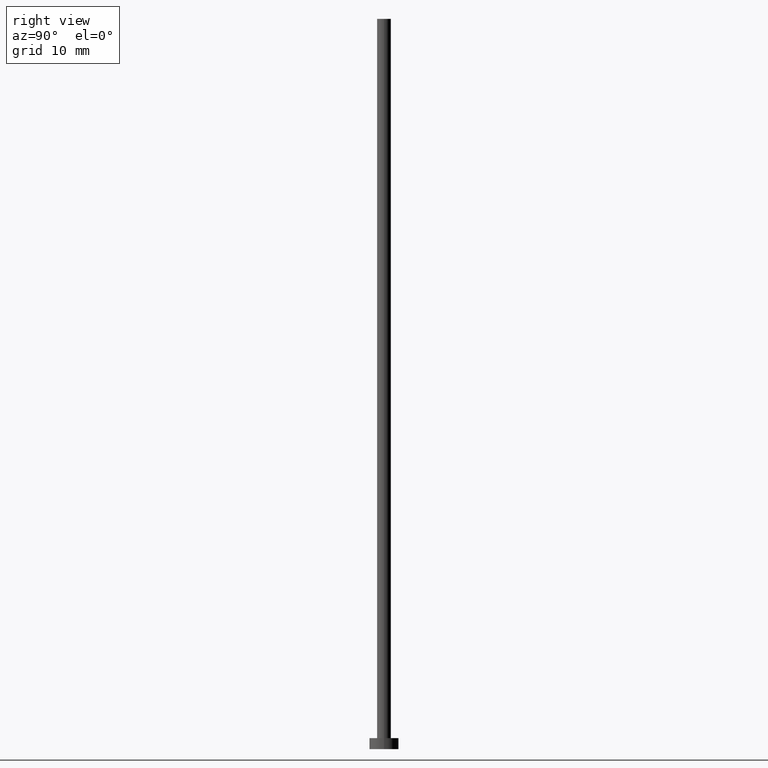
[diagram: clean part render]
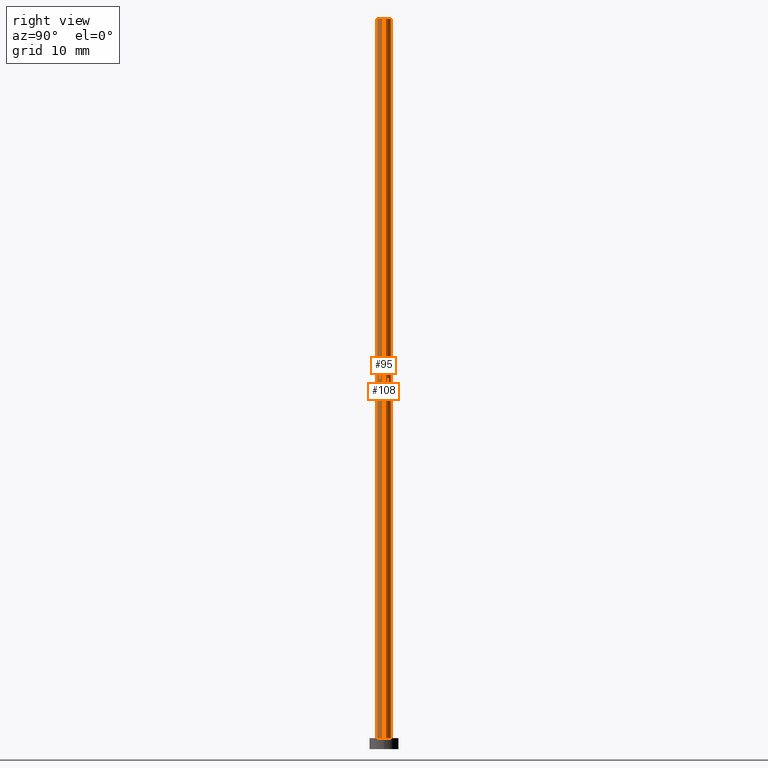
[diagram: same view with one multi-face feature highlighted, each face labeled with its STEP entity id]
A machine part, right view. The highlighted faces form ONE feature: a constant-radius fillet chain: 2 tangent blend faces with common blend radius 0.95 mm. The faces share edges in the B-rep.
Their STEP definitions:
[1] entity #108 (Cylinder):
#8 = CARTESIAN_POINT ( 'NONE',  ( 0.9499999999999999556, 1.163414459189985682E-16, 100.0000000000000000 ) ) ;
#14 = EDGE_CURVE ( 'NONE', #161, #103, #234, .T. ) ;
#18 = VERTEX_POINT ( 'NONE', #239 ) ;
#21 = EDGE_LOOP ( 'NONE', ( #232, #59, #127, #61 ) ) ;
#26 = CARTESIAN_POINT ( 'NONE',  ( 0.9499999999999999556, 1.163414459189985682E-16, 1.500000000000000000 ) ) ;
#28 = CARTESIAN_POINT ( 'NONE',  ( 0.000000000000000000, 0.000000000000000000, 100.0000000000000000 ) ) ;
#30 = VERTEX_POINT ( 'NONE', #152 ) ;
#46 = EDGE_CURVE ( 'NONE', #103, #30, #147, .T. ) ;
#48 = DIRECTION ( 'NONE',  ( -0.000000000000000000, -0.000000000000000000, -1.000000000000000000 ) ) ;
#50 = DIRECTION ( 'NONE',  ( -1.000000000000000000, 0.000000000000000000, 0.000000000000000000 ) ) ;
#51 = CARTESIAN_POINT ( 'NONE',  ( 0.000000000000000000, 0.000000000000000000, 100.0000000000000000 ) ) ;
#53 = VECTOR ( 'NONE', #218, 1000.000000000000000 ) ;
#59 = ORIENTED_EDGE ( 'NONE', *, *, #14, .T. ) ;
#61 = ORIENTED_EDGE ( 'NONE', *, *, #85, .F. ) ;
#64 = FACE_OUTER_BOUND ( 'NONE', #21, .T. ) ;
#68 = LINE ( 'NONE', #224, #53 ) ;
#71 = DIRECTION ( 'NONE',  ( 1.000000000000000000, 0.000000000000000000, 0.000000000000000000 ) ) ;
#81 = CYLINDRICAL_SURFACE ( 'NONE', #216, 0.9499999999999999556 ) ;
#85 = EDGE_CURVE ( 'NONE', #18, #30, #68, .T. ) ;
#103 = VERTEX_POINT ( 'NONE', #26 ) ;
#107 = DIRECTION ( 'NONE',  ( 0.000000000000000000, 0.000000000000000000, 1.000000000000000000 ) ) ;
#108 = ADVANCED_FACE ( 'NONE', ( #64 ), #81, .T. ) ;
#110 = AXIS2_PLACEMENT_3D ( 'NONE', #51, #158, #71 ) ;
#127 = ORIENTED_EDGE ( 'NONE', *, *, #46, .T. ) ;
#146 = CARTESIAN_POINT ( 'NONE',  ( 0.000000000000000000, 0.000000000000000000, 1.500000000000000000 ) ) ;
#147 = CIRCLE ( 'NONE', #198, 0.9499999999999999556 ) ;
#152 = CARTESIAN_POINT ( 'NONE',  ( -0.9499999999999999556, 0.000000000000000000, 1.500000000000000000 ) ) ;
#154 = VECTOR ( 'NONE', #236, 1000.000000000000000 ) ;
#157 = EDGE_CURVE ( 'NONE', #161, #18, #201, .T. ) ;
#158 = DIRECTION ( 'NONE',  ( 0.000000000000000000, 0.000000000000000000, 1.000000000000000000 ) ) ;
#161 = VERTEX_POINT ( 'NONE', #251 ) ;
#182 = DIRECTION ( 'NONE',  ( 1.000000000000000000, 0.000000000000000000, 0.000000000000000000 ) ) ;
#198 = AXIS2_PLACEMENT_3D ( 'NONE', #146, #107, #182 ) ;
#201 = CIRCLE ( 'NONE', #110, 0.9499999999999999556 ) ;
#216 = AXIS2_PLACEMENT_3D ( 'NONE', #28, #48, #50 ) ;
#218 = DIRECTION ( 'NONE',  ( -0.000000000000000000, -0.000000000000000000, -1.000000000000000000 ) ) ;
#224 = CARTESIAN_POINT ( 'NONE',  ( -0.9499999999999999556, 0.000000000000000000, 100.0000000000000000 ) ) ;
#232 = ORIENTED_EDGE ( 'NONE', *, *, #157, .F. ) ;
#234 = LINE ( 'NONE', #8, #154 ) ;
#236 = DIRECTION ( 'NONE',  ( -0.000000000000000000, -0.000000000000000000, -1.000000000000000000 ) ) ;
#239 = CARTESIAN_POINT ( 'NONE',  ( -0.9499999999999999556, 0.000000000000000000, 100.0000000000000000 ) ) ;
#251 = CARTESIAN_POINT ( 'NONE',  ( 0.9499999999999999556, 1.163414459189985682E-16, 100.0000000000000000 ) ) ;
[2] entity #95 (Cylinder):
#5 = CIRCLE ( 'NONE', #104, 0.9499999999999999556 ) ;
#8 = CARTESIAN_POINT ( 'NONE',  ( 0.9499999999999999556, 1.163414459189985682E-16, 100.0000000000000000 ) ) ;
#10 = CARTESIAN_POINT ( 'NONE',  ( 0.000000000000000000, 0.000000000000000000, 1.500000000000000000 ) ) ;
#11 = DIRECTION ( 'NONE',  ( -0.000000000000000000, -0.000000000000000000, -1.000000000000000000 ) ) ;
#14 = EDGE_CURVE ( 'NONE', #161, #103, #234, .T. ) ;
#16 = ORIENTED_EDGE ( 'NONE', *, *, #85, .T. ) ;
#18 = VERTEX_POINT ( 'NONE', #239 ) ;
#22 = EDGE_CURVE ( 'NONE', #30, #103, #5, .T. ) ;
#26 = CARTESIAN_POINT ( 'NONE',  ( 0.9499999999999999556, 1.163414459189985682E-16, 1.500000000000000000 ) ) ;
#30 = VERTEX_POINT ( 'NONE', #152 ) ;
#44 = ORIENTED_EDGE ( 'NONE', *, *, #22, .T. ) ;
#45 = AXIS2_PLACEMENT_3D ( 'NONE', #84, #11, #202 ) ;
#47 = FACE_OUTER_BOUND ( 'NONE', #162, .T. ) ;
#53 = VECTOR ( 'NONE', #218, 1000.000000000000000 ) ;
#68 = LINE ( 'NONE', #224, #53 ) ;
#73 = DIRECTION ( 'NONE',  ( 1.000000000000000000, 0.000000000000000000, 0.000000000000000000 ) ) ;
#84 = CARTESIAN_POINT ( 'NONE',  ( 0.000000000000000000, 0.000000000000000000, 100.0000000000000000 ) ) ;
#85 = EDGE_CURVE ( 'NONE', #18, #30, #68, .T. ) ;
#95 = ADVANCED_FACE ( 'NONE', ( #47 ), #241, .T. ) ;
#103 = VERTEX_POINT ( 'NONE', #26 ) ;
#104 = AXIS2_PLACEMENT_3D ( 'NONE', #10, #128, #105 ) ;
#105 = DIRECTION ( 'NONE',  ( 1.000000000000000000, 0.000000000000000000, 0.000000000000000000 ) ) ;
#118 = ORIENTED_EDGE ( 'NONE', *, *, #177, .F. ) ;
#128 = DIRECTION ( 'NONE',  ( 0.000000000000000000, 0.000000000000000000, 1.000000000000000000 ) ) ;
#152 = CARTESIAN_POINT ( 'NONE',  ( -0.9499999999999999556, 0.000000000000000000, 1.500000000000000000 ) ) ;
#154 = VECTOR ( 'NONE', #236, 1000.000000000000000 ) ;
#161 = VERTEX_POINT ( 'NONE', #251 ) ;
#162 = EDGE_LOOP ( 'NONE', ( #186, #118, #16, #44 ) ) ;
#177 = EDGE_CURVE ( 'NONE', #18, #161, #180, .T. ) ;
#180 = CIRCLE ( 'NONE', #205, 0.9499999999999999556 ) ;
#185 = CARTESIAN_POINT ( 'NONE',  ( 0.000000000000000000, 0.000000000000000000, 100.0000000000000000 ) ) ;
#186 = ORIENTED_EDGE ( 'NONE', *, *, #14, .F. ) ;
#202 = DIRECTION ( 'NONE',  ( -1.000000000000000000, 0.000000000000000000, 0.000000000000000000 ) ) ;
#205 = AXIS2_PLACEMENT_3D ( 'NONE', #185, #230, #73 ) ;
#218 = DIRECTION ( 'NONE',  ( -0.000000000000000000, -0.000000000000000000, -1.000000000000000000 ) ) ;
#224 = CARTESIAN_POINT ( 'NONE',  ( -0.9499999999999999556, 0.000000000000000000, 100.0000000000000000 ) ) ;
#230 = DIRECTION ( 'NONE',  ( 0.000000000000000000, 0.000000000000000000, 1.000000000000000000 ) ) ;
#234 = LINE ( 'NONE', #8, #154 ) ;
#236 = DIRECTION ( 'NONE',  ( -0.000000000000000000, -0.000000000000000000, -1.000000000000000000 ) ) ;
#239 = CARTESIAN_POINT ( 'NONE',  ( -0.9499999999999999556, 0.000000000000000000, 100.0000000000000000 ) ) ;
#241 = CYLINDRICAL_SURFACE ( 'NONE', #45, 0.9499999999999999556 ) ;
#251 = CARTESIAN_POINT ( 'NONE',  ( 0.9499999999999999556, 1.163414459189985682E-16, 100.0000000000000000 ) ) ;